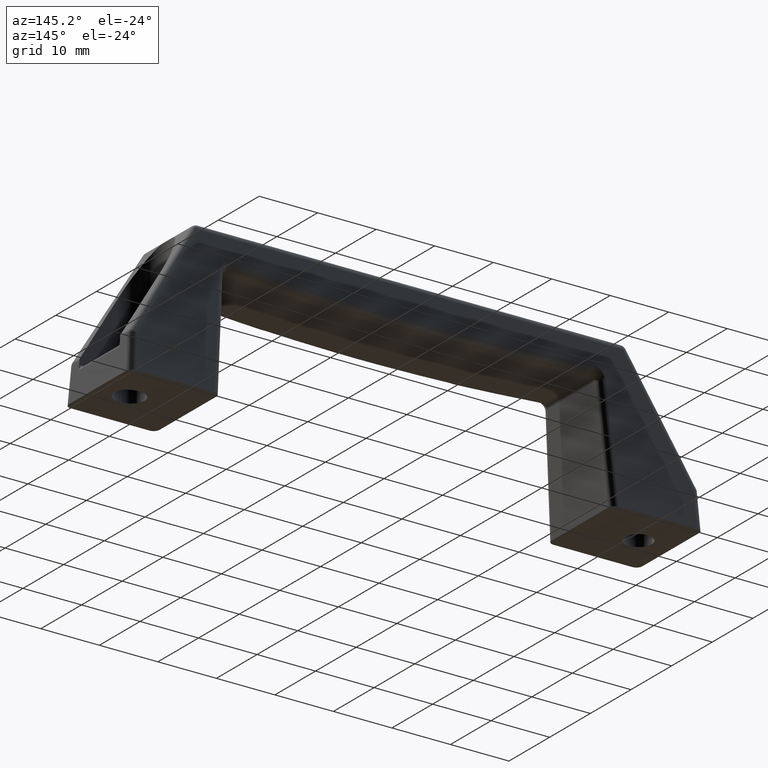
[diagram: clean part render]
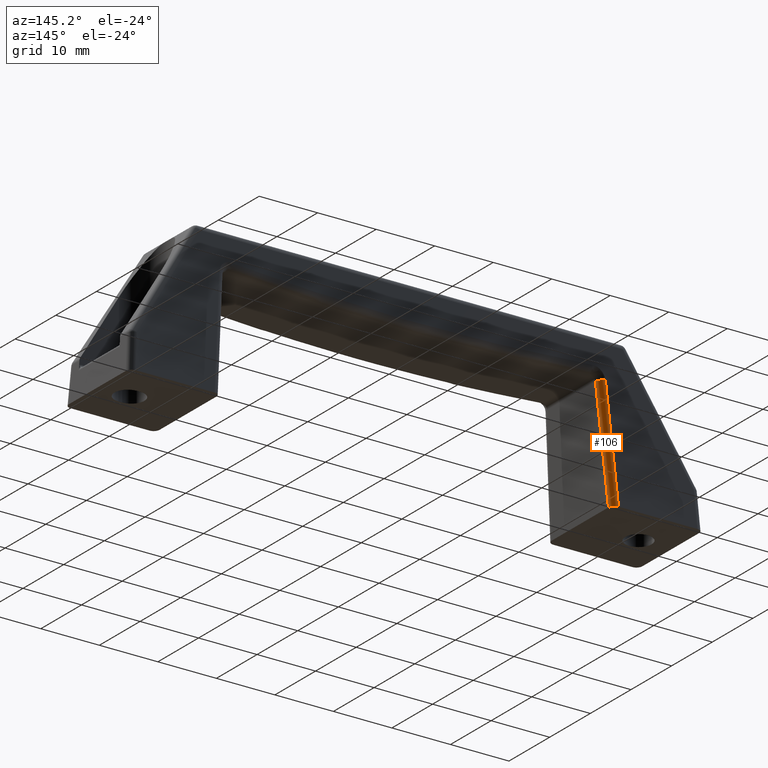
[diagram: same view with one face highlighted and labeled with its STEP entity id]
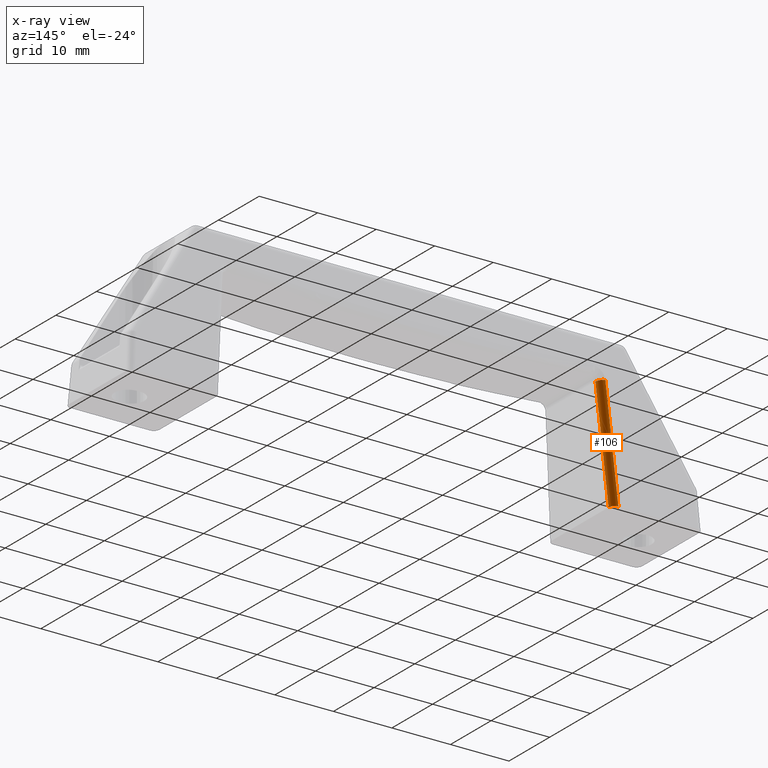
[diagram: x-ray of the same camera — body ghosted, the highlighted face saturated]
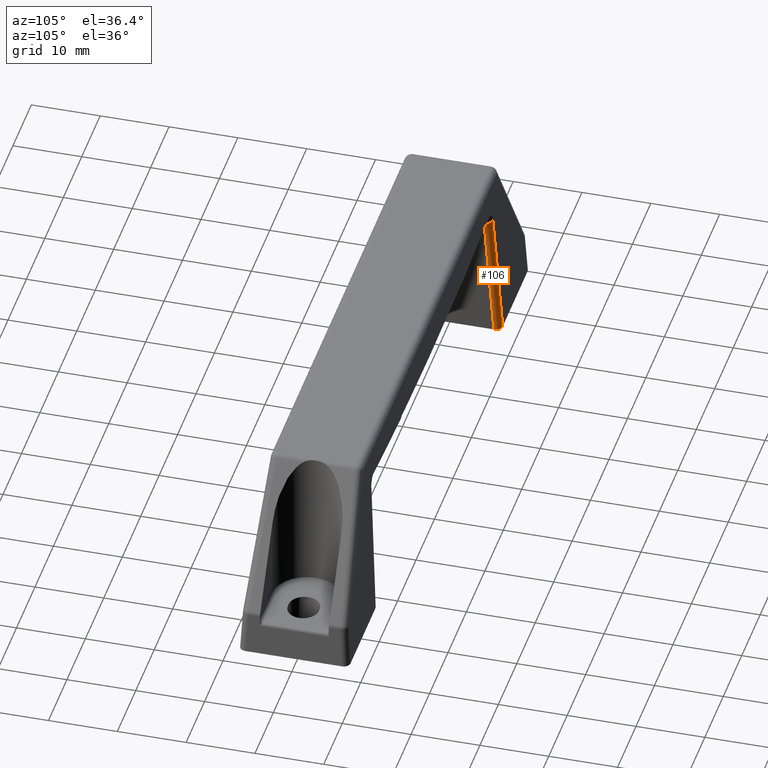
[diagram: same view with one face highlighted and labeled with its STEP entity id]
A machine part, auxiliary view. The second image highlights one B-rep face of the part: STEP entity #106.
The next image is the same camera in x-ray: the body ghosted, the highlighted face saturated — about 0% of this face is hidden behind the body in this view.
A second angle (auxiliary view) of the same face is appended — the face is thin or edge-on in the first view.
In plain terms, the highlighted cylindrical surface (edge-blend (fillet) strip) has radius 1 mm, axis along (0.0784, -0.0522, 0.9956).
Its self-contained STEP definition (entity closure, byte-faithful):
#106=ADVANCED_FACE('',(#785),#784,.T.);
#784=CYLINDRICAL_SURFACE('',#1579,1.00000000000E+00);
#785=FACE_OUTER_BOUND('',#1580,.T.);
#1576=CARTESIAN_POINT('',(-3.04129952988E+01,4.27501587715E+00,2.59696085983E+01));
#1577=DIRECTION('',(7.83522308207E-02,-5.21750618234E-02,9.95559486344E-01));
#1578=DIRECTION('',(9.96917333733E-01,-0.00000000000E+00,-7.84590957278E-02));
#1579=AXIS2_PLACEMENT_3D('',#1576,#1577,#1578);
#1580=EDGE_LOOP('',(#1985,#1986,#1987,#1988));
#1985=ORIENTED_EDGE('',*,*,#2128,.T.);
#1986=ORIENTED_EDGE('',*,*,#2232,.T.);
#1987=ORIENTED_EDGE('',*,*,#2233,.T.);
#1988=ORIENTED_EDGE('',*,*,#2127,.T.);
#2127=EDGE_CURVE('',#2729,#2744,#2751,.T.);
#2128=EDGE_CURVE('',#2744,#2757,#2758,.T.);
#2232=EDGE_CURVE('',#2757,#3433,#3434,.T.);
#2233=EDGE_CURVE('',#3433,#2729,#3440,.T.);
#2729=VERTEX_POINT('',#3809);
#2744=VERTEX_POINT('',#3818);
#2751=LINE('',#3822,#3823);
#2757=VERTEX_POINT('',#3825);
#2758=(BOUNDED_CURVE() B_SPLINE_CURVE(2,(#3826,#3827,#3828,#3829,#3830),.UNSPECIFIED.,.F.,.F.) B_SPLINE_CURVE_WITH_KNOTS((3,2,3),(3.72701569272E+00,4.51402595843E+00,5.30191826286E+00),.UNSPECIFIED.) CURVE() GEOMETRIC_REPRESENTATION_ITEM() RATIONAL_B_SPLINE_CURVE((1.00000000000E+00,9.23486197952E-01,1.00000000000E+00,9.23486197952E-01,1.00000000000E+00)) REPRESENTATION_ITEM('') );
#3433=VERTEX_POINT('',#4272);
#3434=LINE('',#4273,#4274);
#3440=CIRCLE('',#4279,1.00000000000E+00);
#3809=CARTESIAN_POINT('',(-3.19816466285E+01,5.98343824400E+00,-6.70749119953E+00));
#3818=CARTESIAN_POINT('',(-3.35000000000E+01,6.99451578703E+00,-2.60000000000E+01));
#3822=CARTESIAN_POINT('',(-3.19816466285E+01,5.98343824400E+00,-6.70749119953E+00));
#3823=VECTOR('',#3824,1.93785595589E+01);
#3824=DIRECTION('',(-7.83522308207E-02,5.21750618234E-02,-9.95559486344E-01));
#3825=CARTESIAN_POINT('',(-3.45072111276E+01,8.00000000007E+00,-2.60000000000E+01));
#3826=CARTESIAN_POINT('',(-3.35000000000E+01,6.99451578703E+00,-2.60000000000E+01));
#3827=CARTESIAN_POINT('',(-3.35000000000E+01,7.41049914079E+00,-2.60000000000E+01));
#3828=CARTESIAN_POINT('',(-3.37952566621E+01,7.70524957039E+00,-2.60000000000E+01));
#3829=CARTESIAN_POINT('',(-3.40905133243E+01,8.00000000000E+00,-2.60000000000E+01));
#3830=CARTESIAN_POINT('',(-3.45072111276E+01,8.00000000000E+00,-2.60000000000E+01));
#4272=CARTESIAN_POINT('',(-3.29785639622E+01,6.98206777875E+00,-6.57669614756E+00));
#4273=CARTESIAN_POINT('',(-3.45072111276E+01,8.00000000000E+00,-2.60000000000E+01));
#4274=VECTOR('',#4275,1.95099379986E+01);
#4275=DIRECTION('',(7.83522308207E-02,-5.21750618235E-02,9.95559486344E-01));
#4276=CARTESIAN_POINT('',(-3.29785639622E+01,5.98343824400E+00,-6.62903210380E+00));
#4277=DIRECTION('',(-7.83522308207E-02,5.21750618234E-02,-9.95559486344E-01));
#4278=DIRECTION('',(-9.96917333733E-01,-0.00000000000E+00,7.84590957278E-02));
#4279=AXIS2_PLACEMENT_3D('',#4276,#4277,#4278);